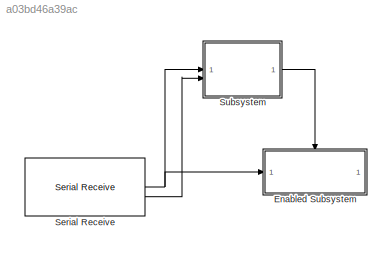
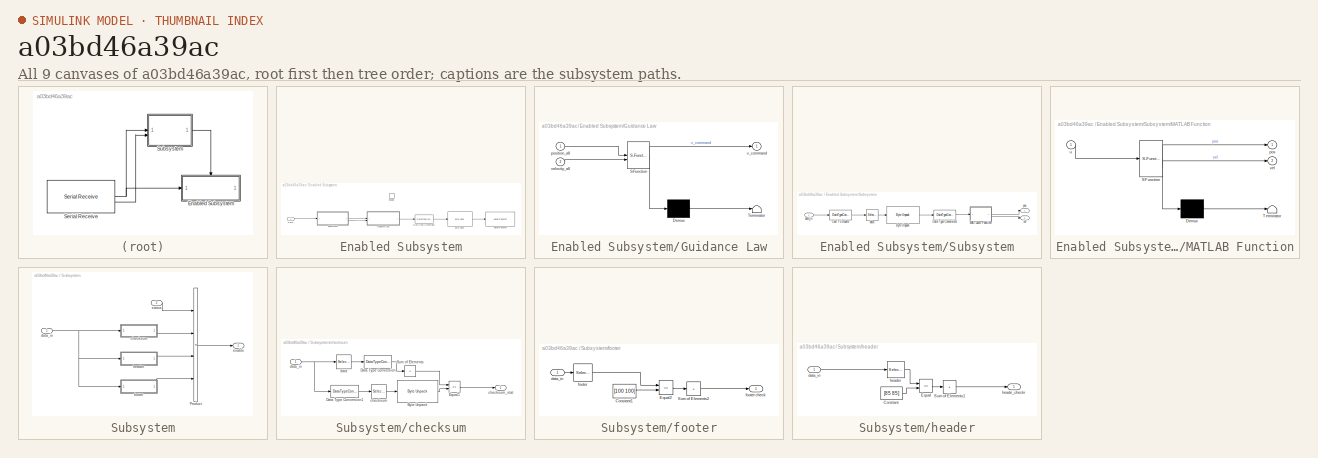
[diagram: thumbnail index - all 9 canvases of the model, root first then tree order]
MODEL slx_a03bd46a39ac
KIND model
CONFIG AbsTol = auto
CONFIG EnableMultiTasking = on
CONFIG FixedStep = 0.005
CONFIG MaxStep = auto
CONFIG MinStep = auto
CONFIG RelTol = 1e-3
CONFIG SampleTimeConstraint = Unconstrained
CONFIG SolverName = ode1
CONFIG StartTime = 0.0
CONFIG StopTime = inf
BLOCK [SubSystem] Enabled Subsystem
  TreatAsAtomicUnit = on
BLOCK [Reference] Enabled Subsystem/Byte Pack  REF=svdutilitieslib/Byte Pack
  SourceBlock = svdutilitieslib/Byte Pack
  SourceType = Byte pack
BLOCK [Inport] Enabled Subsystem/Data
BLOCK [DataTypeConversion] Enabled Subsystem/Data Type Conversion
  OutDataTypeStr = single
  RndMeth = Floor
  SaturateOnIntegerOverflow = off
BLOCK [EnablePort] Enabled Subsystem/Enable
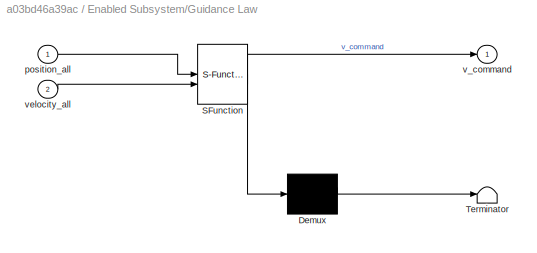
BLOCK [SubSystem] Enabled Subsystem/Guidance Law
  ErrorFcn = Stateflow.Translate.translate
  PermitHierarchicalResolution = ExplicitOnly
  SFBlockType = MATLAB Function
  TreatAsAtomicUnit = on
BLOCK [Demux] Enabled Subsystem/Guidance Law/ Demux 
  Outputs = 1
BLOCK [S-Function] Enabled Subsystem/Guidance Law/ SFunction 
  EnableBusSupport = on
  FunctionName = sf_sfun
  PortCounts = [2 2]
  SFcnIsStateOwnerBlock = off
  SFunctionDeploymentMode = off
  Tag = Stateflow S-Function 1
BLOCK [Terminator] Enabled Subsystem/Guidance Law/ Terminator 
BLOCK [Inport] Enabled Subsystem/Guidance Law/position_all
BLOCK [Outport] Enabled Subsystem/Guidance Law/v_command
BLOCK [Inport] Enabled Subsystem/Guidance Law/velocity_all
  Port = 2
BLOCK [Reference] Enabled Subsystem/Serial Transmit  REF=arduinolib/Serial Transmit
  SourceBlock = arduinolib/Serial Transmit
  SourceType = Arduino Serial Transmit
BLOCK [SubSystem] Enabled Subsystem/Subsystem
BLOCK [Reference] Enabled Subsystem/Subsystem/Byte Unpack  REF=etargetslib/Byte Unpack
  SourceBlock = etargetslib/Byte Unpack
  SourceType = Byte Unpack
BLOCK [DataTypeConversion] Enabled Subsystem/Subsystem/Cast To Double
  OutDataTypeStr = uint8
  RndMeth = Floor
  SaturateOnIntegerOverflow = off
BLOCK [DataTypeConversion] Enabled Subsystem/Subsystem/Data Type Conversion1
  OutDataTypeStr = double
  RndMeth = Floor
  SaturateOnIntegerOverflow = off
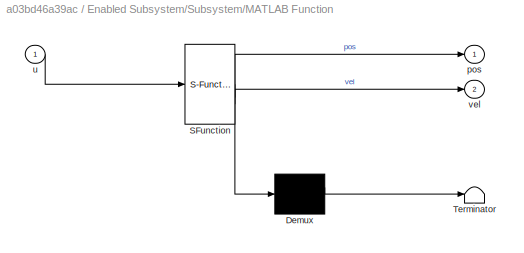
BLOCK [SubSystem] Enabled Subsystem/Subsystem/MATLAB Function
  ErrorFcn = Stateflow.Translate.translate
  PermitHierarchicalResolution = ExplicitOnly
  SFBlockType = MATLAB Function
  TreatAsAtomicUnit = on
BLOCK [Demux] Enabled Subsystem/Subsystem/MATLAB Function/ Demux 
  Outputs = 1
BLOCK [S-Function] Enabled Subsystem/Subsystem/MATLAB Function/ SFunction 
  EnableBusSupport = on
  FunctionName = sf_sfun
  PortCounts = [1 3]
  SFcnIsStateOwnerBlock = off
  SFunctionDeploymentMode = off
  Tag = Stateflow S-Function 2
BLOCK [Terminator] Enabled Subsystem/Subsystem/MATLAB Function/ Terminator 
BLOCK [Outport] Enabled Subsystem/Subsystem/MATLAB Function/pos
BLOCK [Inport] Enabled Subsystem/Subsystem/MATLAB Function/u
BLOCK [Outport] Enabled Subsystem/Subsystem/MATLAB Function/vel
  Port = 2
BLOCK [Selector] Enabled Subsystem/Subsystem/data
  IndexOptions = Index vector (dialog)
  Indices = [3:26]
  InputPortWidth = 32
  OutputSizes = 1
BLOCK [Inport] Enabled Subsystem/Subsystem/data_in
BLOCK [Outport] Enabled Subsystem/Subsystem/pos
BLOCK [Outport] Enabled Subsystem/Subsystem/vel
  Port = 2
BLOCK [Reference] Serial Receive  REF=arduinolib/Serial Receive
  SourceBlock = arduinolib/Serial Receive
  SourceType = Arduino Serial Receive
BLOCK [SubSystem] Subsystem
BLOCK [Product] Subsystem/Product
  Inputs = 4
BLOCK [SubSystem] Subsystem/checksum
BLOCK [Reference] Subsystem/checksum/Byte Unpack  REF=etargetslib/Byte Unpack
  SourceBlock = etargetslib/Byte Unpack
  SourceType = Byte Unpack
BLOCK [DataTypeConversion] Subsystem/checksum/Data Type Conversion
  OutDataTypeStr = uint32
  RndMeth = Floor
  SaturateOnIntegerOverflow = off
BLOCK [DataTypeConversion] Subsystem/checksum/Data Type Conversion1
  OutDataTypeStr = uint8
  RndMeth = Floor
  SaturateOnIntegerOverflow = off
BLOCK [RelationalOperator] Subsystem/checksum/Equal1
  InputSameDT = off
  Operator = ==
  OutDataTypeStr = boolean
  RndMeth = Simplest
BLOCK [Sum] Subsystem/checksum/Sum of Elements
  IconShape = rectangular
  Inputs = +
BLOCK [Selector] Subsystem/checksum/checksum
  IndexOptions = Index vector (dialog)
  Indices = [27:30]
  InputPortWidth = 32
  OutputSizes = 1
BLOCK [Outport] Subsystem/checksum/checksum_stat
BLOCK [Selector] Subsystem/checksum/data
  IndexOptions = Index vector (dialog)
  Indices = [3:26]
  InputPortWidth = 32
  OutputSizes = 1
BLOCK [Inport] Subsystem/checksum/data_in
BLOCK [Inport] Subsystem/data_in
BLOCK [Outport] Subsystem/enable
BLOCK [SubSystem] Subsystem/footer
BLOCK [Constant] Subsystem/footer/Constant1
  Value = [100 100]
BLOCK [RelationalOperator] Subsystem/footer/Equal2
  InputSameDT = off
  Operator = ==
  OutDataTypeStr = boolean
  RndMeth = Simplest
BLOCK [Sum] Subsystem/footer/Sum of Elements2
  IconShape = rectangular
  Inputs = +
BLOCK [Inport] Subsystem/footer/data_in
BLOCK [Selector] Subsystem/footer/footer
  IndexOptions = Index vector (dialog)
  Indices = [31 32]
  InputPortWidth = 32
  OutputSizes = 1
BLOCK [Outport] Subsystem/footer/footer check
BLOCK [SubSystem] Subsystem/header
BLOCK [Constant] Subsystem/header/Constant
  Value = [85 85]
BLOCK [RelationalOperator] Subsystem/header/Equal
  InputSameDT = off
  Operator = ==
  OutDataTypeStr = boolean
  RndMeth = Simplest
BLOCK [Sum] Subsystem/header/Sum of Elements1
  IconShape = rectangular
  Inputs = +
BLOCK [Inport] Subsystem/header/data_in
BLOCK [Outport] Subsystem/header/heade_checkr
BLOCK [Selector] Subsystem/header/header
  IndexOptions = Index vector (dialog)
  Indices = [1 2]
  InputPortWidth = 32
  OutputSizes = 1
BLOCK [Inport] Subsystem/status
  Port = 2
LINE Enabled Subsystem/Byte Pack:1 -> Enabled Subsystem/Serial Transmit:1
LINE Enabled Subsystem/Data Type Conversion:1 -> Enabled Subsystem/Byte Pack:1
LINE Enabled Subsystem/Data:1 -> Enabled Subsystem/Subsystem:1
LINE Enabled Subsystem/Guidance Law:1 -> Enabled Subsystem/Data Type Conversion:1
LINE Enabled Subsystem/Subsystem/Byte Unpack:1 -> Enabled Subsystem/Subsystem/Data Type Conversion1:1
LINE Enabled Subsystem/Subsystem/Cast To Double:1 -> Enabled Subsystem/Subsystem/data:1
LINE Enabled Subsystem/Subsystem/Data Type Conversion1:1 -> Enabled Subsystem/Subsystem/MATLAB Function:1
LINE Enabled Subsystem/Subsystem/MATLAB Function:1 -> Enabled Subsystem/Subsystem/pos:1
LINE Enabled Subsystem/Subsystem/MATLAB Function:2 -> Enabled Subsystem/Subsystem/vel:1
LINE Enabled Subsystem/Subsystem/data:1 -> Enabled Subsystem/Subsystem/Byte Unpack:1
LINE Enabled Subsystem/Subsystem/data_in:1 -> Enabled Subsystem/Subsystem/Cast To Double:1
LINE Enabled Subsystem/Subsystem:1 -> Enabled Subsystem/Guidance Law:1
LINE Enabled Subsystem/Subsystem:2 -> Enabled Subsystem/Guidance Law:2
NET Serial Receive:1 -> Enabled Subsystem:1, Subsystem:1
LINE Serial Receive:2 -> Subsystem:2
LINE Subsystem/Product:1 -> Subsystem/enable:1
LINE Subsystem/checksum/Byte Unpack:1 -> Subsystem/checksum/Equal1:2
LINE Subsystem/checksum/Data Type Conversion1:1 -> Subsystem/checksum/checksum:1
LINE Subsystem/checksum/Data Type Conversion:1 -> Subsystem/checksum/Sum of Elements:1
LINE Subsystem/checksum/Equal1:1 -> Subsystem/checksum/checksum_stat:1
LINE Subsystem/checksum/Sum of Elements:1 -> Subsystem/checksum/Equal1:1
LINE Subsystem/checksum/checksum:1 -> Subsystem/checksum/Byte Unpack:1
LINE Subsystem/checksum/data:1 -> Subsystem/checksum/Data Type Conversion:1
NET Subsystem/checksum/data_in:1 -> Subsystem/checksum/Data Type Conversion1:1, Subsystem/checksum/data:1
LINE Subsystem/checksum:1 -> Subsystem/Product:2
NET Subsystem/data_in:1 -> Subsystem/checksum:1, Subsystem/footer:1, Subsystem/header:1
LINE Subsystem/footer/Constant1:1 -> Subsystem/footer/Equal2:2
LINE Subsystem/footer/Equal2:1 -> Subsystem/footer/Sum of Elements2:1
LINE Subsystem/footer/Sum of Elements2:1 -> Subsystem/footer/footer check:1
LINE Subsystem/footer/data_in:1 -> Subsystem/footer/footer:1
LINE Subsystem/footer/footer:1 -> Subsystem/footer/Equal2:1
LINE Subsystem/footer:1 -> Subsystem/Product:4
LINE Subsystem/header/Constant:1 -> Subsystem/header/Equal:2
LINE Subsystem/header/Equal:1 -> Subsystem/header/Sum of Elements1:1
LINE Subsystem/header/Sum of Elements1:1 -> Subsystem/header/heade_checkr:1
LINE Subsystem/header/data_in:1 -> Subsystem/header/header:1
LINE Subsystem/header/header:1 -> Subsystem/header/Equal:1
LINE Subsystem/header:1 -> Subsystem/Product:3
LINE Subsystem/status:1 -> Subsystem/Product:1
LINE Subsystem:1 -> Enabled Subsystem:enable
note: NET lines group one-source signal fan-out (src -> all destinations, sorted); 1:1 wires keep LINE
CHART Enabled
Subsystem/Guidance Law states=1 transitions=1
  STATE_LABEL 'eML_blk_kernel()'
  STATE_LABEL 'SCRIPT:\nfunction v_command = fcn(position_all, velocity_all)\n\n%%%%%%%% main Vasarhelyi Guidance Law %%%%%%%%\n\n%% parameters %%\nv_command = zeros(1, 2);\n% x_arena: arena limits\nx_arena = [-100, 100; ... % x wall\n    -100, 100]; % y_wall\n% spheres: obstacles\nspheres = [0, 50, -50; 0, 10, 20; 5, 10, 2]; % x y radius\n% agent_number: number of agents\nagent_number = 20;\n% Max radius of influence - Metri...<+3608ch>'
CHART Enabled
Subsystem/Subsystem/MATLAB Function states=1 transitions=1
  STATE_LABEL 'eML_blk_kernel()'
  STATE_LABEL 'SCRIPT:\nfunction [pos, vel] = fcn(u)\npersistent all_data iteration\nn = 40;\nif isempty(all_data)\n    all_data = [randn(1, n)*20-10, ones(1, n)];\nend\nif isempty(iteration)\n    iteration = 0;\nend\nfor i = 1:length(u)\n    iteration = iteration + 1;\n    all_data(iteration) = u(i);\n    if iteration >= length(all_data)\n        iteration = 0;\n    end\nend\ny = reshape(all_data, [2, 40]);\npos = y(1, :);\nvel =...<+11ch>'
CHART  states=0 transitions=0
CHART  states=0 transitions=0
